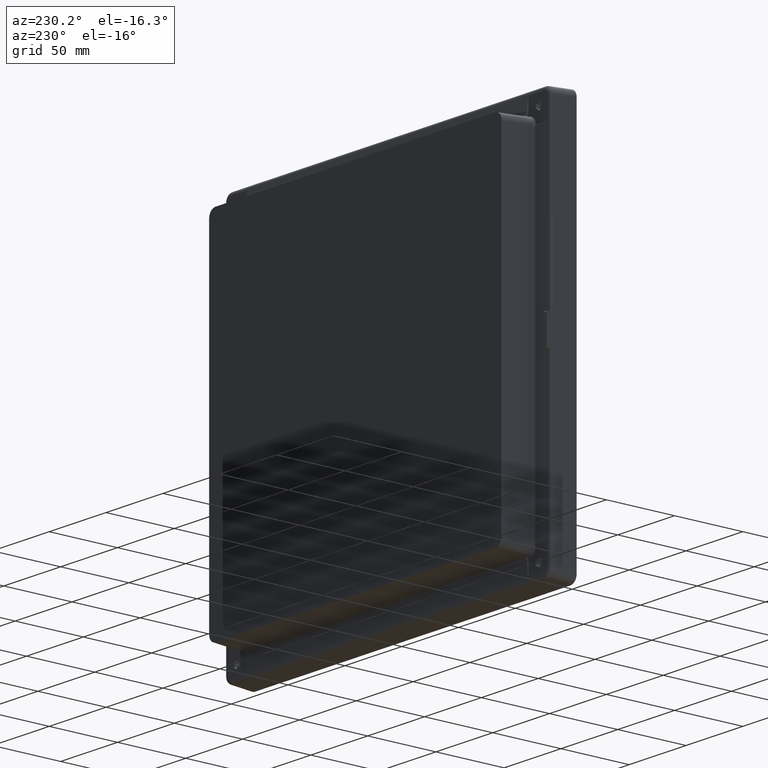
[diagram: clean part render]
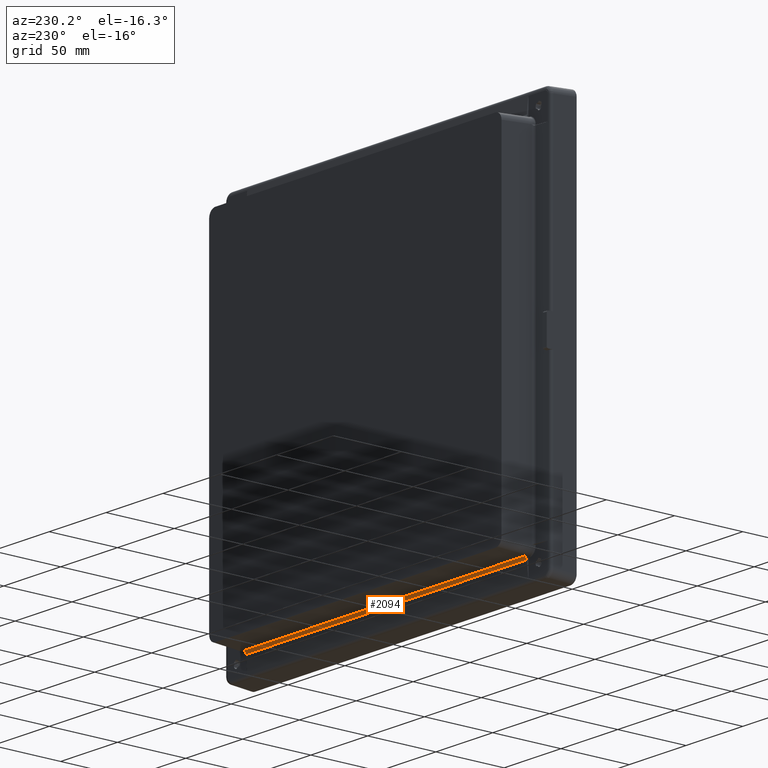
[diagram: same view with one face highlighted and labeled with its STEP entity id]
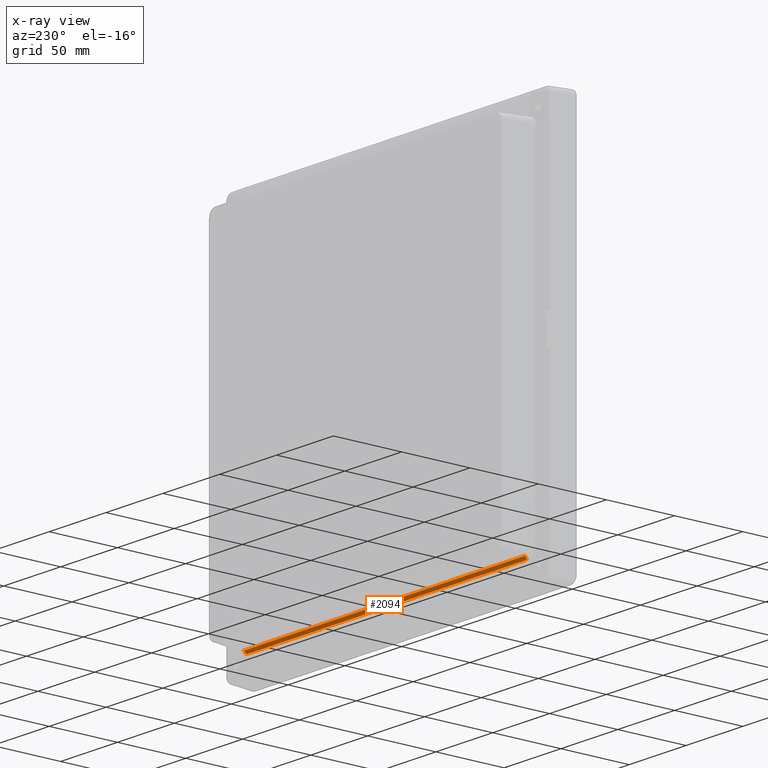
[diagram: x-ray of the same camera — body ghosted, the highlighted face saturated]
A machine part, auxiliary view. The second image highlights one B-rep face of the part: STEP entity #2094.
The next image is the same camera in x-ray: the body ghosted, the highlighted face saturated — about 0% of this face is hidden behind the body in this view.
In plain terms, the highlighted face is a freeform B-spline surface patch.
Its self-contained STEP definition (entity closure, byte-faithful):
#759 = VERTEX_POINT ( 'NONE', #7703 ) ;
#786 = VERTEX_POINT ( 'NONE', #7798 ) ;
#841 = EDGE_CURVE ( 'NONE', #786, #759, #8322, .T. ) ;
#1580 = CARTESIAN_POINT ( 'NONE',  ( -123.4787400232765200, 11.33487797383372700, -130.6126843953760200 ) ) ;
#1734 = CARTESIAN_POINT ( 'NONE',  ( -123.4787400232765200, 11.33487797383372700, -130.6126843953760200 ) ) ;
#1736 = CARTESIAN_POINT ( 'NONE',  ( -123.4765660408400000, 11.37094932687780100, -130.2380690707950100 ) ) ;
#1738 = CARTESIAN_POINT ( 'NONE',  ( -123.4679244505870100, 11.51433312237490000, -129.8766389614150100 ) ) ;
#1740 = CARTESIAN_POINT ( 'NONE',  ( -123.4540293618430000, 11.74488450292418500, -129.5791754920520600 ) ) ;
#1745 = B_SPLINE_CURVE_WITH_KNOTS ( 'NONE', 3,
 ( #1740, #1738, #1736, #1734 ),
 .UNSPECIFIED., .F., .F.,
 ( 4, 4 ),
 ( 0.0000000000000000000, 1.000000000000000000 ),
 .UNSPECIFIED. ) ;
#1985 = VERTEX_POINT ( 'NONE', #11020 ) ;
#2065 = EDGE_CURVE ( 'NONE', #5124, #1985, #11355, .T. ) ;
#2068 = ORIENTED_EDGE ( 'NONE', *, *, #5129, .F. ) ;
#2070 = ORIENTED_EDGE ( 'NONE', *, *, #5063, .T. ) ;
#2088 = EDGE_CURVE ( 'NONE', #786, #1985, #11372, .T. ) ;
#2094 = ADVANCED_FACE ( 'NONE', ( #11403 ), #11397, .T. ) ;
#2096 = EDGE_LOOP ( 'NONE', ( #2098, #2103, #2104, #2105, #2068, #2070 ) ) ;
#2098 = ORIENTED_EDGE ( 'NONE', *, *, #2100, .F. ) ;
#2100 = EDGE_CURVE ( 'NONE', #759, #5065, #11398, .T. ) ;
#2103 = ORIENTED_EDGE ( 'NONE', *, *, #841, .F. ) ;
#2104 = ORIENTED_EDGE ( 'NONE', *, *, #2088, .T. ) ;
#2105 = ORIENTED_EDGE ( 'NONE', *, *, #2065, .F. ) ;
#5063 = EDGE_CURVE ( 'NONE', #5064, #5065, #17786, .T. ) ;
#5064 = VERTEX_POINT ( 'NONE', #17787 ) ;
#5065 = VERTEX_POINT ( 'NONE', #17785 ) ;
#5124 = VERTEX_POINT ( 'NONE', #1580 ) ;
#5129 = EDGE_CURVE ( 'NONE', #5064, #5124, #1745, .T. ) ;
#7703 = CARTESIAN_POINT ( 'NONE',  ( 124.1615386664096300, 13.22099845808211200, -128.8071168309074000 ) ) ;
#7798 = CARTESIAN_POINT ( 'NONE',  ( 123.4540293618430000, 11.74488450292418500, -129.5791754920520600 ) ) ;
#8319 = CARTESIAN_POINT ( 'NONE',  ( 123.4559038027695700, 11.78773209993902800, -129.5252173499708600 ) ) ;
#8320 = CARTESIAN_POINT ( 'NONE',  ( 123.4546202452007700, 11.76497679146280200, -129.5532517056777200 ) ) ;
#8321 = CARTESIAN_POINT ( 'NONE',  ( 123.4540293618430000, 11.74488450292418500, -129.5791754920520600 ) ) ;
#8322 = B_SPLINE_CURVE_WITH_KNOTS ( 'NONE', 3,
 ( #8321, #8320, #8319, #8373, #8372, #8371, #8370, #8369, #8368, #8367, #8366, #8365, #8364, #8363, #8362, #8361, #8360, #8359, #8358, #8357, #8356, #8355, #8354, #8353, #8352, #8351, #8350, #8349, #8348, #8347, #8346, #8345, #8344, #8343, #8342, #8341, #8340, #8339, #8338, #8337 ),
 .UNSPECIFIED., .F., .F.,
 ( 4, 2, 1, 2, 2, 2, 1, 1, 1, 2, 2, 2, 2, 1, 1, 1, 2, 2, 2, 2, 1, 2, 2, 4 ),
 ( 0.0000000000000000000, 0.06250000000037433900, 0.09375000000054496700, 0.1093750000006165500, 0.1250000000006881400, 0.1875000000010087500, 0.2187500000011543800, 0.2343750000012235200, 0.2421875000012580800, 0.2460937500012764000, 0.2500000000012946900, 0.3125000000010324500, 0.3437500000008968400, 0.3593750000008297800, 0.3671875000007962500, 0.3710937500007855400, 0.3730468750007777700, 0.3750000000007700500, 0.4375000000008264500, 0.4687500000008658600, 0.4843750000008826300, 0.4921875000008840200, 0.5000000000008854000, 1.000000000000000000 ),
 .UNSPECIFIED. ) ;
#8337 = CARTESIAN_POINT ( 'NONE',  ( 124.1615386664096300, 13.22099845808211200, -128.8071168309074000 ) ) ;
#8338 = CARTESIAN_POINT ( 'NONE',  ( 123.9956140778180500, 12.94962850707747700, -128.8214811031685700 ) ) ;
#8339 = CARTESIAN_POINT ( 'NONE',  ( 123.8321834894881400, 12.68917506256645600, -128.8874851102473000 ) ) ;
#8340 = CARTESIAN_POINT ( 'NONE',  ( 123.6927521655504400, 12.43329671858549500, -129.0144897440504500 ) ) ;
#8341 = CARTESIAN_POINT ( 'NONE',  ( 123.6888755180620900, 12.42616167342442200, -129.0180627168394400 ) ) ;
#8342 = CARTESIAN_POINT ( 'NONE',  ( 123.6830612974260900, 12.41541115416147500, -129.0235186220704700 ) ) ;
#8343 = CARTESIAN_POINT ( 'NONE',  ( 123.6745468158853100, 12.39960645298020800, -129.0316285309870600 ) ) ;
#8344 = CARTESIAN_POINT ( 'NONE',  ( 123.6666465974458300, 12.38476430338250900, -129.0394901585978300 ) ) ;
#8345 = CARTESIAN_POINT ( 'NONE',  ( 123.6516427249581700, 12.35635629624901800, -129.0548172776852900 ) ) ;
#8346 = CARTESIAN_POINT ( 'NONE',  ( 123.6427038442929400, 12.33912149803909800, -129.0645050422491500 ) ) ;
#8347 = CARTESIAN_POINT ( 'NONE',  ( 123.6188404581373400, 12.29240993705524300, -129.0915271725748700 ) ) ;
#8348 = CARTESIAN_POINT ( 'NONE',  ( 123.6068390151378200, 12.26788723876361700, -129.1068024262459600 ) ) ;
#8349 = CARTESIAN_POINT ( 'NONE',  ( 123.5978002531186900, 12.24903078667884800, -129.1188362356520500 ) ) ;
#8350 = CARTESIAN_POINT ( 'NONE',  ( 123.5964411008169500, 12.24619128283622300, -129.1206520256851000 ) ) ;
#8351 = CARTESIAN_POINT ( 'NONE',  ( 123.5948322213503700, 12.24281884108369800, -129.1228186591682200 ) ) ;
#8352 = CARTESIAN_POINT ( 'NONE',  ( 123.5924429880254000, 12.23779859204897100, -129.1260546781075800 ) ) ;
#8353 = CARTESIAN_POINT ( 'NONE',  ( 123.5870350088703700, 12.22635264257172200, -129.1335055346011100 ) ) ;
#8354 = CARTESIAN_POINT ( 'NONE',  ( 123.5768731088803900, 12.20452543884146800, -129.1479894672605700 ) ) ;
#8355 = CARTESIAN_POINT ( 'NONE',  ( 123.5692372313570100, 12.18761741735219000, -129.1596259027313400 ) ) ;
#8356 = CARTESIAN_POINT ( 'NONE',  ( 123.5552751380250800, 12.15614386881965300, -129.1817081866683500 ) ) ;
#8357 = CARTESIAN_POINT ( 'NONE',  ( 123.5477095361575400, 12.13828244557649900, -129.1948362375013100 ) ) ;
#8358 = CARTESIAN_POINT ( 'NONE',  ( 123.5293479447753800, 12.09367172255037600, -129.2284167251517000 ) ) ;
#8359 = CARTESIAN_POINT ( 'NONE',  ( 123.5227790656075500, 12.07585267845645100, -129.2429491759319300 ) ) ;
#8360 = CARTESIAN_POINT ( 'NONE',  ( 123.5203379996356000, 12.06899905266917200, -129.2484875601082300 ) ) ;
#8361 = CARTESIAN_POINT ( 'NONE',  ( 123.5191892690032600, 12.06576444395678900, -129.2511067117770000 ) ) ;
#8362 = CARTESIAN_POINT ( 'NONE',  ( 123.5179086910961800, 12.06213134136794100, -129.2540637502724800 ) ) ;
#8363 = CARTESIAN_POINT ( 'NONE',  ( 123.5159996087519300, 12.05668636488202800, -129.2585114090478800 ) ) ;
#8364 = CARTESIAN_POINT ( 'NONE',  ( 123.5116288848023100, 12.04401492377710900, -129.2689737126145000 ) ) ;
#8365 = CARTESIAN_POINT ( 'NONE',  ( 123.5032331005149800, 12.01881212817627500, -129.2902338518157400 ) ) ;
#8366 = CARTESIAN_POINT ( 'NONE',  ( 123.4966650250433100, 11.99747058318990500, -129.3090244286758500 ) ) ;
#8367 = CARTESIAN_POINT ( 'NONE',  ( 123.4844612863970500, 11.95518950878661000, -129.3473420070409900 ) ) ;
#8368 = CARTESIAN_POINT ( 'NONE',  ( 123.4775690535763000, 11.92753887217011400, -129.3738711624348800 ) ) ;
#8369 = CARTESIAN_POINT ( 'NONE',  ( 123.4708056030838000, 11.89381012900611400, -129.4081255729237500 ) ) ;
#8370 = CARTESIAN_POINT ( 'NONE',  ( 123.4690593420493500, 11.88462337596859800, -129.4175947283584100 ) ) ;
#8371 = CARTESIAN_POINT ( 'NONE',  ( 123.4663539152252800, 11.86931714261489300, -129.4336679647638800 ) ) ;
#8372 = CARTESIAN_POINT ( 'NONE',  ( 123.4626783688087200, 11.84697950731342800, -129.4575216614375400 ) ) ;
#8373 = CARTESIAN_POINT ( 'NONE',  ( 123.4600498788994500, 11.82646439068765300, -129.4805249303417200 ) ) ;
#11020 = CARTESIAN_POINT ( 'NONE',  ( 123.4787400232764900, 11.33487797383372900, -130.6126843953759900 ) ) ;
#11348 = DIRECTION ( 'NONE',  ( 1.000000000000000000, 7.024381183553546100E-018, 1.123900989368567400E-016 ) ) ;
#11349 = VECTOR ( 'NONE', #11348, 1000.000000000000000 ) ;
#11355 = LINE ( 'NONE', #11356, #11349 ) ;
#11356 = CARTESIAN_POINT ( 'NONE',  ( -1.387778780781445700E-014, 11.33487797383372900, -130.6126843953759900 ) ) ;
#11372 = B_SPLINE_CURVE_WITH_KNOTS ( 'NONE', 3,
 ( #11402, #11401, #11400, #11399 ),
 .UNSPECIFIED., .F., .F.,
 ( 4, 4 ),
 ( 0.0000000000000000000, 1.000000000000000000 ),
 .UNSPECIFIED. ) ;
#11385 = CARTESIAN_POINT ( 'NONE',  ( -125.6532251601920600, 11.33487797383369500, -130.6126843953759900 ) ) ;
#11386 = CARTESIAN_POINT ( 'NONE',  ( 125.6532257611071500, 11.33487797383369500, -130.6126843953759900 ) ) ;
#11387 = CARTESIAN_POINT ( 'NONE',  ( -125.6532251601920400, 11.43437859681027300, -129.5793309160461300 ) ) ;
#11388 = CARTESIAN_POINT ( 'NONE',  ( 125.6532257611071700, 11.43437859681027300, -129.5793309160461300 ) ) ;
#11389 = CARTESIAN_POINT ( 'NONE',  ( -125.6532251601920400, 12.18428834607548700, -128.8614485056383800 ) ) ;
#11390 = CARTESIAN_POINT ( 'NONE',  ( 125.6532257611071700, 12.18428834607548700, -128.8614485056383800 ) ) ;
#11391 = CARTESIAN_POINT ( 'NONE',  ( -125.6532251601920600, 13.22099845808213600, -128.8071168309078300 ) ) ;
#11392 = CARTESIAN_POINT ( 'NONE',  ( 125.6532257611071500, 13.22099845808213600, -128.8071168309078300 ) ) ;
#11393 = CARTESIAN_POINT ( 'NONE',  ( 4.163336342344337000E-014, 13.22099845808211100, -128.8071168309074000 ) ) ;
#11395 = DIRECTION ( 'NONE',  ( -1.000000000000000000, -1.397150433708434600E-017, 0.0000000000000000000 ) ) ;
#11396 = VECTOR ( 'NONE', #11395, 1000.000000000000000 ) ;
#11397 =( BOUNDED_SURFACE ( )  B_SPLINE_SURFACE ( 3, 1, ( 
 ( #11392, #11391 ),
 ( #11390, #11389 ),
 ( #11388, #11387 ),
 ( #11386, #11385 ) ),
 .UNSPECIFIED., .F., .F., .F. ) 
 B_SPLINE_SURFACE_WITH_KNOTS ( ( 4, 4 ),
 ( 2, 2 ),
 ( 0.0000000000000000000, 1.000000000000000000 ),
 ( 0.0000000000000000000, 1.000000000000000000 ),
 .UNSPECIFIED. ) 
 GEOMETRIC_REPRESENTATION_ITEM ( )  RATIONAL_B_SPLINE_SURFACE ( (
 ( 1.000000000000000000, 1.000000000000000000),
 ( 0.8383766562560911500, 0.8383766562560911500),
 ( 0.8383766562560911500, 0.8383766562560911500),
 ( 1.000000000000000000, 1.000000000000000000) ) ) 
 REPRESENTATION_ITEM ( '' )  SURFACE ( )  );
#11398 = LINE ( 'NONE', #11393, #11396 ) ;
#11399 = CARTESIAN_POINT ( 'NONE',  ( 123.4787400232764900, 11.33487797383372900, -130.6126843953759900 ) ) ;
#11400 = CARTESIAN_POINT ( 'NONE',  ( 123.4765735287389000, 11.36958249453761900, -130.2522641673909000 ) ) ;
#11401 = CARTESIAN_POINT ( 'NONE',  ( 123.4683366415942200, 11.50655226135805100, -129.8866780334317100 ) ) ;
#11402 = CARTESIAN_POINT ( 'NONE',  ( 123.4540293618430000, 11.74488450292418500, -129.5791754920520600 ) ) ;
#11403 = FACE_OUTER_BOUND ( 'NONE', #2096, .T. ) ;
#17785 = CARTESIAN_POINT ( 'NONE',  ( -124.1615386664095400, 13.22099845808211100, -128.8071168309074000 ) ) ;
#17786 = B_SPLINE_CURVE_WITH_KNOTS ( 'NONE', 3,
 ( #17924, #17923, #17922, #17921, #17920, #17919, #17918, #17917, #17916, #17915, #17914, #17913, #17912, #17911, #17910, #17909, #17908, #17907, #17906, #17905, #17904 ),
 .UNSPECIFIED., .F., .F.,
 ( 4, 2, 1, 2, 2, 2, 2, 1, 1, 2, 2, 4 ),
 ( 0.0000000000000000000, 0.1250000000000439600, 0.1875000000000669200, 0.2187500000000932600, 0.2500000000001195700, 0.3750000000001960700, 0.4375000000002283200, 0.4687500000002444200, 0.4843750000002609600, 0.4921875000002692300, 0.5000000000002774400, 1.000000000000000000 ),
 .UNSPECIFIED. ) ;
#17787 = CARTESIAN_POINT ( 'NONE',  ( -123.4540293618430000, 11.74488450292418500, -129.5791754920520600 ) ) ;
#17904 = CARTESIAN_POINT ( 'NONE',  ( -124.1615386664095400, 13.22099845808211100, -128.8071168309074000 ) ) ;
#17905 = CARTESIAN_POINT ( 'NONE',  ( -123.9627963039361600, 12.90612017319691400, -128.8237925808722400 ) ) ;
#17906 = CARTESIAN_POINT ( 'NONE',  ( -123.8066656171716600, 12.64235014934696900, -128.9108289408100600 ) ) ;
#17907 = CARTESIAN_POINT ( 'NONE',  ( -123.6931271592058600, 12.43397120632399800, -129.0141565270341500 ) ) ;
#17908 = CARTESIAN_POINT ( 'NONE',  ( -123.6899291683777300, 12.42808705738761100, -129.0170959194194600 ) ) ;
#17909 = CARTESIAN_POINT ( 'NONE',  ( -123.6850468782261900, 12.41906713666622200, -129.0216543543381800 ) ) ;
#17910 = CARTESIAN_POINT ( 'NONE',  ( -123.6777858891830600, 12.40560727440589900, -129.0285209943163000 ) ) ;
#17911 = CARTESIAN_POINT ( 'NONE',  ( -123.6612807047037400, 12.37469019039124500, -129.0447377113640400 ) ) ;
#17912 = CARTESIAN_POINT ( 'NONE',  ( -123.6478827579292800, 12.34902528086191100, -129.0589428649157100 ) ) ;
#17913 = CARTESIAN_POINT ( 'NONE',  ( -123.6220860033242800, 12.29879783372879700, -129.0876868651662300 ) ) ;
#17914 = CARTESIAN_POINT ( 'NONE',  ( -123.6062203521793900, 12.26678352949019200, -129.1072934453926000 ) ) ;
#17915 = CARTESIAN_POINT ( 'NONE',  ( -123.5626199545198500, 12.17502664516575100, -129.1668961837088700 ) ) ;
#17916 = CARTESIAN_POINT ( 'NONE',  ( -123.5388817637806100, 12.11957856033757100, -129.2076592515745700 ) ) ;
#17917 = CARTESIAN_POINT ( 'NONE',  ( -123.5158699516487100, 12.05683492906435100, -129.2583109868876900 ) ) ;
#17918 = CARTESIAN_POINT ( 'NONE',  ( -123.5104477523621700, 12.04126577483604200, -129.2711950271662400 ) ) ;
#17919 = CARTESIAN_POINT ( 'NONE',  ( -123.5013207204546900, 12.01326701795799300, -129.2950925619755100 ) ) ;
#17920 = CARTESIAN_POINT ( 'NONE',  ( -123.4885277023987000, 11.97140186648296000, -129.3318274057585000 ) ) ;
#17921 = CARTESIAN_POINT ( 'NONE',  ( -123.4784272737589800, 11.93006105242129200, -129.3712766635705100 ) ) ;
#17922 = CARTESIAN_POINT ( 'NONE',  ( -123.4618165357009800, 11.84843843320263300, -129.4539015506349800 ) ) ;
#17923 = CARTESIAN_POINT ( 'NONE',  ( -123.4555295359576700, 11.79542691155518400, -129.5139643439532900 ) ) ;
#17924 = CARTESIAN_POINT ( 'NONE',  ( -123.4540293618430000, 11.74488450292418500, -129.5791754920520600 ) ) ;